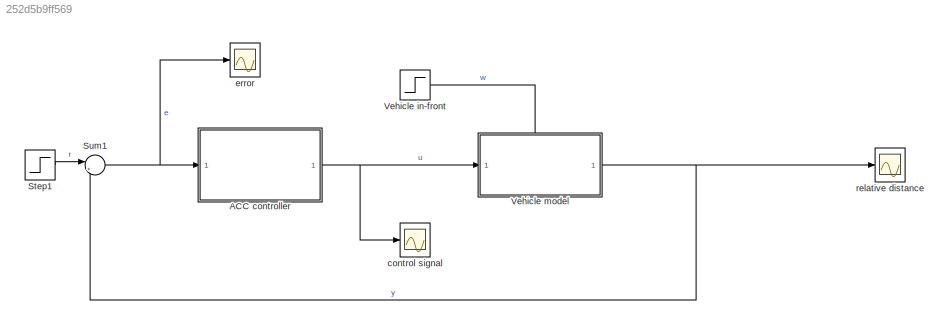
MODEL slx_252d5b9ff569
KIND model
CONFIG AbsTol = auto
CONFIG EnableMultiTasking = off
CONFIG FixedStep = auto
CONFIG MaxStep = 0.001
CONFIG MinStep = auto
CONFIG RelTol = 1e-3
CONFIG SampleTimeConstraint = Unconstrained
CONFIG SolverName = ode45
CONFIG StartTime = 0.0
CONFIG StopTime = 80.0
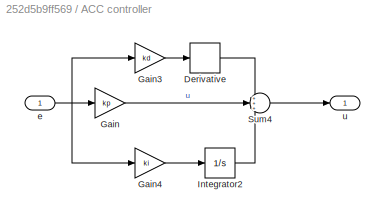
BLOCK [SubSystem] ACC controller
BLOCK [Derivative] ACC controller/Derivative
BLOCK [Gain] ACC controller/Gain
  Gain = kp
BLOCK [Gain] ACC controller/Gain3
  Gain = kd
BLOCK [Gain] ACC controller/Gain4
  Gain = ki
BLOCK [Integrator] ACC controller/Integrator2
  InitialCondition = a*25/b
BLOCK [Sum] ACC controller/Sum4
  Inputs = +++
BLOCK [Inport] ACC controller/e
BLOCK [Outport] ACC controller/u
BLOCK [Step] Step1
  After = 30
  Before = 30
  SampleTime = 0
  Time = 10
BLOCK [Sum] Sum1
  Inputs = |+-
BLOCK [Step] Vehicle in-front
  After = 15
  Before = 25
  SampleTime = 0
  Time = 10
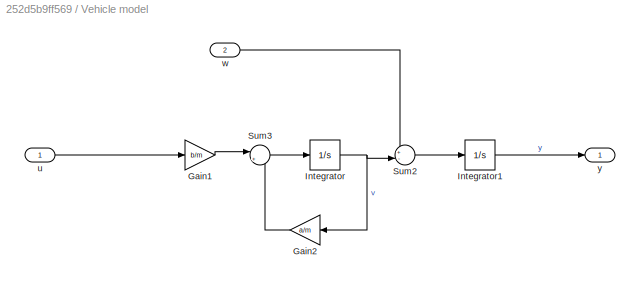
BLOCK [SubSystem] Vehicle model
  PortSchema = {"entries":[{"content":{"sides":[{"content":{"connectorIds":["In1"]},"type":"ConnectorPlacement.EquallySpacedRectSide","uuid":"8188ec2e-7b14-4fd6-ab55-7cea6e9f54e2"},{"content":{"connectorIds":["Out1"],"side":"RIGHT"},"type":"ConnectorPlacement.EquallySpacedRectSide","uuid":"403e2e46-1697-4bb6-98fa-f8a08edec7c4"},{"content":{"connectorIds":["In2"],"side":"TOP"},"type":"ConnectorPlacement.EquallySp...<+389ch>
BLOCK [Gain] Vehicle model/Gain1
  Gain = b/m
BLOCK [Gain] Vehicle model/Gain2
  Gain = a/m
  NameLocation = top
BLOCK [Integrator] Vehicle model/Integrator
  InitialCondition = 25
BLOCK [Integrator] Vehicle model/Integrator1
  InitialCondition = 30
BLOCK [Sum] Vehicle model/Sum2
  Inputs = +-|
BLOCK [Sum] Vehicle model/Sum3
  Inputs = |+-
BLOCK [Inport] Vehicle model/u
BLOCK [Inport] Vehicle model/w
  Port = 2
BLOCK [Outport] Vehicle model/y
BLOCK [Scope] control signal
  Floating = off
  NumInputPorts = 1
  ScopeSpecificationString = Simulink.scopes.TimeScopeBlockCfg('CurrentConfiguration', extmgr.ConfigurationSet(extmgr.Configuration('Core','General UI',true),extmgr.Configuration('Core','Source UI',true),extmgr.Configuration('Sources','WiredSimulink',true,'DataLoggingSaveFormat','Array','DataLoggingDecimation','1','DataLoggingDecimateData',true),extmgr.Configuration('Visuals','Time Domain',true,'SerializedDisplays',{struct('M...<+1676ch>
BLOCK [Scope] error
  Floating = off
  NumInputPorts = 1
  ScopeSpecificationString = Simulink.scopes.TimeScopeBlockCfg('CurrentConfiguration', extmgr.ConfigurationSet(extmgr.Configuration('Core','General UI',true),extmgr.Configuration('Core','Source UI',true),extmgr.Configuration('Sources','WiredSimulink',true,'DataLoggingSaveFormat','Array','DataLoggingDecimation','1','DataLoggingDecimateData',true),extmgr.Configuration('Visuals','Time Domain',true,'SerializedDisplays',{struct('M...<+1688ch>
BLOCK [Scope] relative distance 
  Floating = off
  NumInputPorts = 1
  ScopeSpecificationString = Simulink.scopes.TimeScopeBlockCfg('CurrentConfiguration', extmgr.ConfigurationSet(extmgr.Configuration('Core','General UI',true,'FigureColor',[1 1 1]),extmgr.Configuration('Core','Source UI',true),extmgr.Configuration('Sources','WiredSimulink',true,'DataLoggingSaveFormat','StructureWithTime','DataLoggingDecimation','10','DataLoggingDecimateData',true,'DataLogging',true,'DataLoggingVariableName','r...<+1825ch>
LINE ACC controller/Derivative:1 -> ACC controller/Sum4:1
LINE ACC controller/Gain3:1 -> ACC controller/Derivative:1
LINE ACC controller/Gain4:1 -> ACC controller/Integrator2:1
LINE ACC controller/Gain:1 -> ACC controller/Sum4:2
LINE ACC controller/Integrator2:1 -> ACC controller/Sum4:3
LINE ACC controller/Sum4:1 -> ACC controller/u:1
NET ACC controller/e:1 -> ACC controller/Gain3:1, ACC controller/Gain4:1, ACC controller/Gain:1
NET ACC controller:1 -> Vehicle model:1, control signal:1
LINE Step1:1 -> Sum1:1
NET Sum1:1 -> ACC controller:1, error:1
LINE Vehicle in-front:1 -> Vehicle model:2
LINE Vehicle model/Gain1:1 -> Vehicle model/Sum3:1
LINE Vehicle model/Gain2:1 -> Vehicle model/Sum3:2
LINE Vehicle model/Integrator1:1 -> Vehicle model/y:1
NET Vehicle model/Integrator:1 -> Vehicle model/Gain2:1, Vehicle model/Sum2:2
LINE Vehicle model/Sum2:1 -> Vehicle model/Integrator1:1
LINE Vehicle model/Sum3:1 -> Vehicle model/Integrator:1
LINE Vehicle model/u:1 -> Vehicle model/Gain1:1
LINE Vehicle model/w:1 -> Vehicle model/Sum2:1
NET Vehicle model:1 -> Sum1:2, relative distance :1
note: NET lines group one-source signal fan-out (src -> all destinations, sorted); 1:1 wires keep LINE
